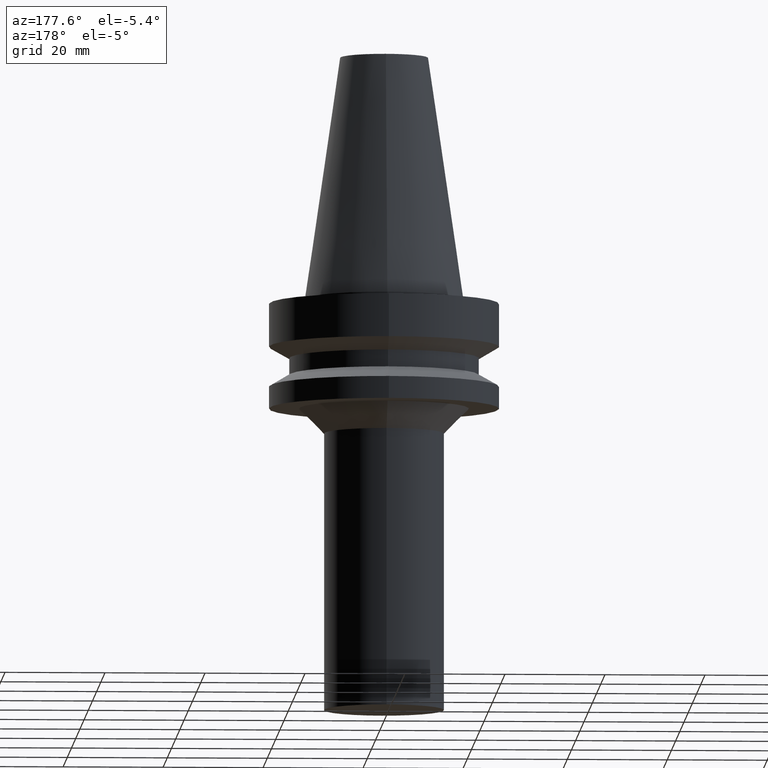
[diagram: clean part render]
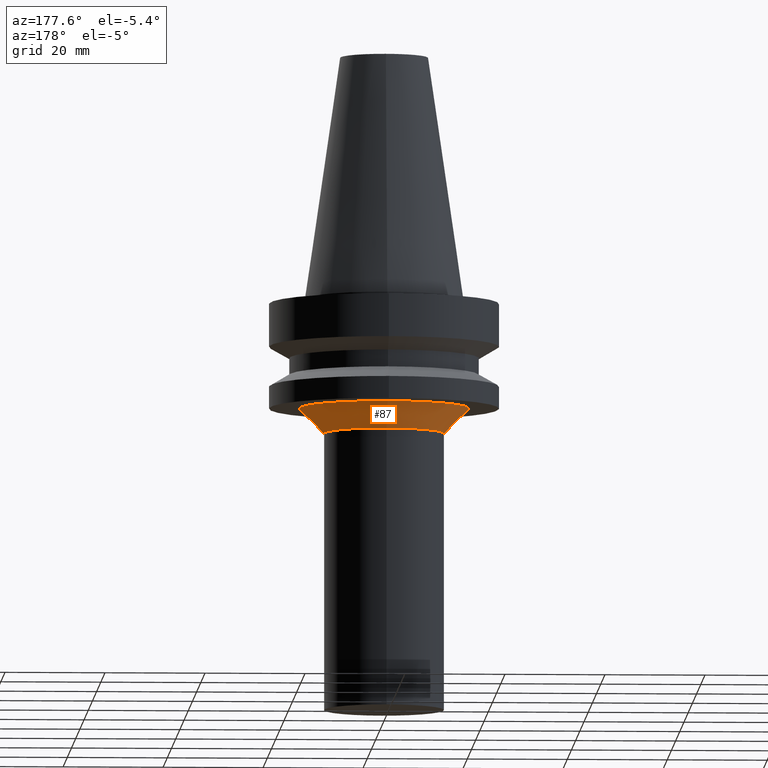
[diagram: same view with one face highlighted and labeled with its STEP entity id]
A machine part, auxiliary view. The second image highlights one B-rep face of the part: STEP entity #87.
In plain terms, the highlighted conical surface has half-angle 45 deg.
Its self-contained STEP definition (entity closure, byte-faithful):
#87=ADVANCED_FACE('',(#123,#124),#125,.T.);
#123=FACE_BOUND('',#160,.T.);
#124=FACE_BOUND('',#161,.T.);
#125=CONICAL_SURFACE('',#162,14.4999999999998,0.785398163397447);
#160=EDGE_LOOP('',(#221));
#161=EDGE_LOOP('',(#222));
#162=AXIS2_PLACEMENT_3D('',#223,#224,#225);
#221=ORIENTED_EDGE('',*,*,#227,.F.);
#222=ORIENTED_EDGE('',*,*,#237,.T.);
#223=CARTESIAN_POINT('',(1.5001923289555E-015,3.00038465791099E-015,-24.4999999999998));
#224=DIRECTION('',(-6.12323399573676E-017,-1.22464679914735E-016,1.0));
#225=DIRECTION('',(-1.23259516440783E-032,1.0,1.22464679914735E-016));
#227=EDGE_CURVE('',#240,#240,#241,.T.);
#237=EDGE_CURVE('',#260,#260,#261,.T.);
#240=VERTEX_POINT('',#264);
#241=CIRCLE('',#265,12.0);
#260=VERTEX_POINT('',#284);
#261=CIRCLE('',#285,16.9999999999996);
#264=CARTESIAN_POINT('',(1.6532731788489E-015,12.0,-26.9999999999996));
#265=AXIS2_PLACEMENT_3D('',#289,#290,#291);
#284=CARTESIAN_POINT('',(1.34711147906209E-015,16.9999999999996,-22.0));
#285=AXIS2_PLACEMENT_3D('',#319,#320,#321);
#289=CARTESIAN_POINT('',(1.6532731788489E-015,3.3065463576978E-015,-26.9999999999996));
#290=DIRECTION('',(6.12323399573677E-017,1.22464679914735E-016,-1.0));
#291=DIRECTION('',(-1.23259516440783E-032,1.0,1.22464679914735E-016));
#319=CARTESIAN_POINT('',(1.34711147906209E-015,2.69422295812418E-015,-22.0));
#320=DIRECTION('',(6.12323399573677E-017,1.22464679914735E-016,-1.0));
#321=DIRECTION('',(-1.23259516440783E-032,1.0,1.22464679914735E-016));